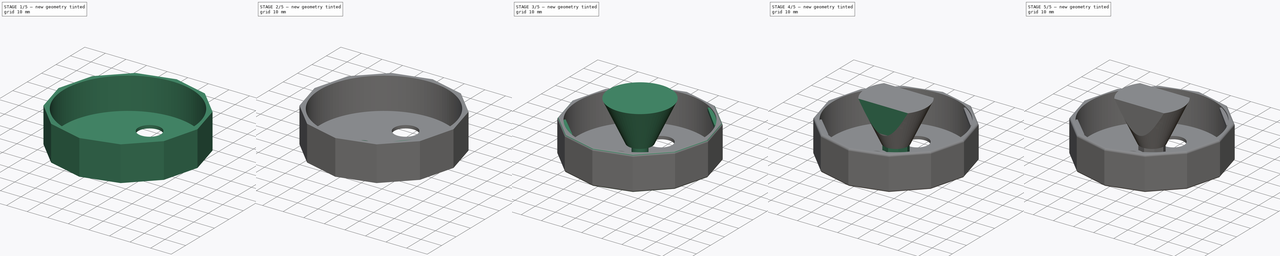
[diagram: build sequence overview — one tinted view per stage of 5, left to right]
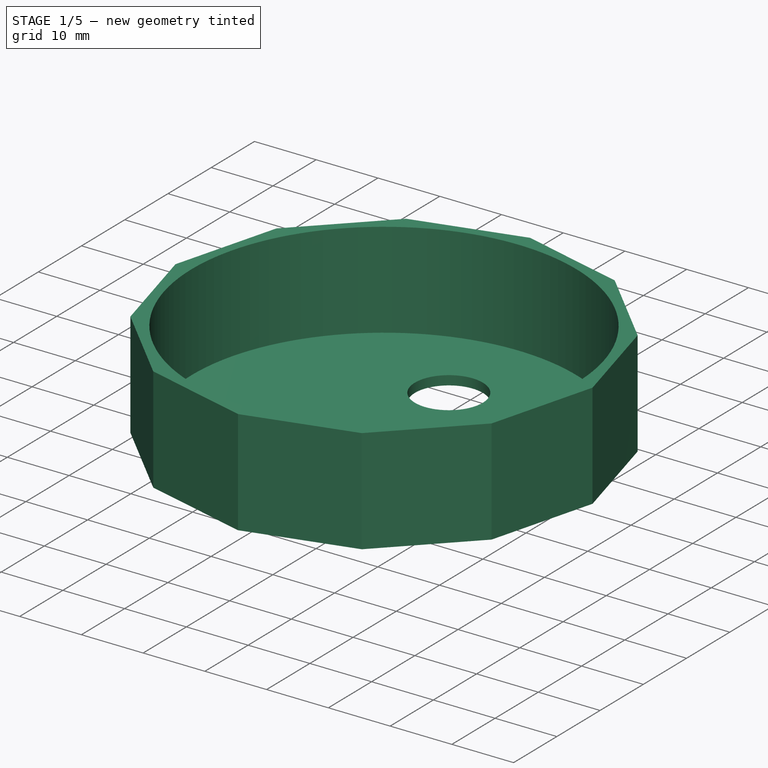
[diagram: stage 1 of 5 — iso view after this stage's code; geometry added in this stage tinted green]
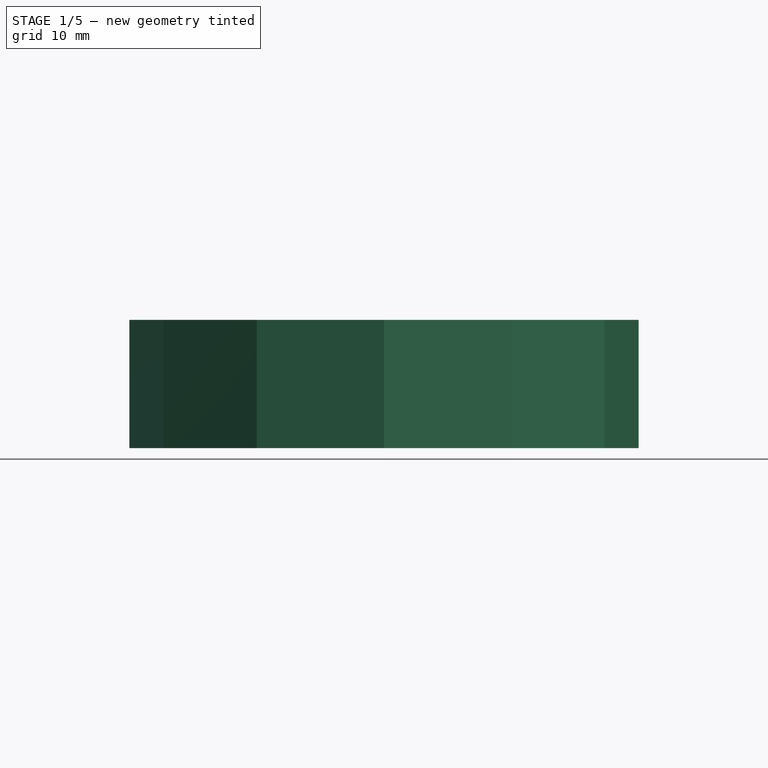
[diagram: stage 1 of 5 — front view after this stage's code; geometry added in this stage tinted green]
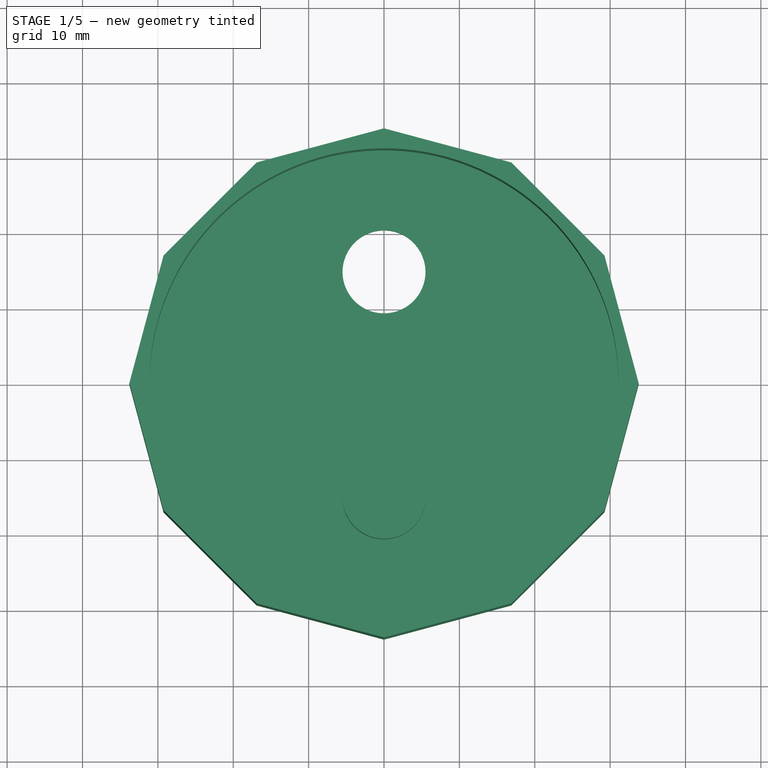
[diagram: stage 1 of 5 — top view after this stage's code; geometry added in this stage tinted green]
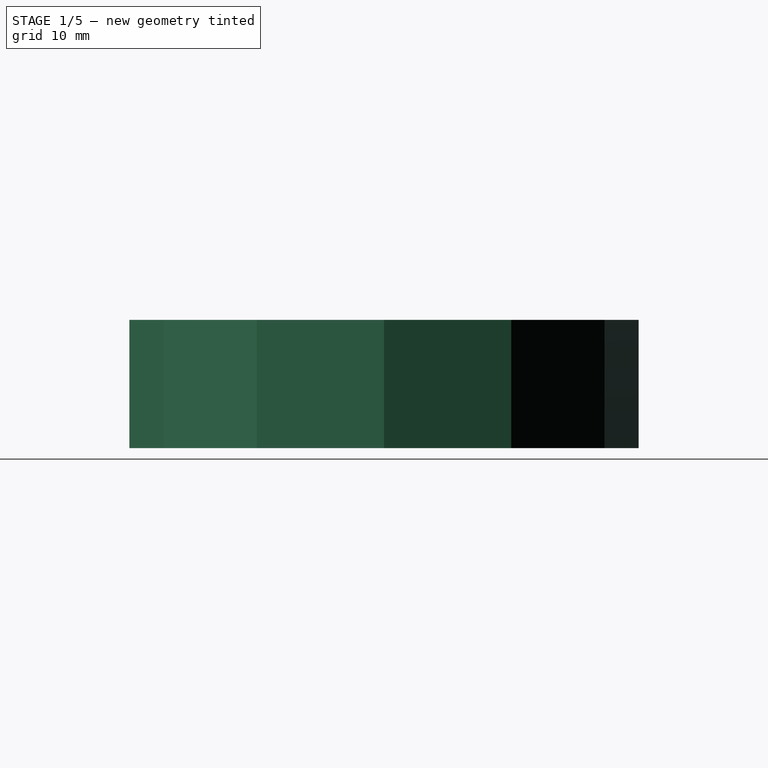
[diagram: stage 1 of 5 — right view after this stage's code; geometry added in this stage tinted green]
FCSTD DOCUMENT  (FreeCAD 2023.131R26244 +5365 (Git))
Label: Mason Jar Culture Lid - Flanged
License: All rights reserved
LicenseURL: http://en.wikipedia.org/wiki/All_rights_reserved
objects: Sketcher::SketchObject×15, PartDesign::Pad×7, PartDesign::Pocket×5, PartDesign::Chamfer×3, PartDesign::Body×3, Spreadsheet::Sheet×2, PartDesign::AdditiveHelix×2, PartDesign::Hole×1, PartDesign::PolarPattern×1, PartDesign::Fillet×1
note: 93 computed .brp shape members not serialized (recipe doc carries the construction recipe); baked Part::Feature solids carry a one-line shape summary decoded from their .brp

FEATURE [Spreadsheet::Sheet] Spreadsheet  label="Parameters"
  PythonMode = false
  ShowCells = 0
  TreeRank = 1
  cells = A2=Ring Inner Diameter; B2(Ring_Inner_Diameter)=62.25; C2=Should be large enough to fit over the threads on the glass jar.; A3=Ring Min Thickness; B3(Ring_Min_Thickness)=1.5; C3=The thickness of the thinnest part of the ring.; A4=Ring Side Height; B4(Ring_Side_Height)=15.5; C4=How much material will screw onto the jar.; A5=Ring Top Height; B5(Ring_Top_Height)=1.5; C5=How thick the lid is on top of the jar.; A7=Flange Height; B7(Flange_Height)=1.8; C7=The height of the threads from the inner survace of the lid.; I7=1.3; A8=Flange Depth; B8(Flange_Depth)=1.6; C8=How tall the flanges are; I8=1.3; A9=Flange Length; B9(Flange_Length)=16; C9=The linear length of each flange.; I9=8; A10=Flange Count; B10(Flange_Count)=4; C10=The number of flanges to create; A11=Flange Angle; B11(Flange_Angle)=2; B13=Diameter; C13=Offset; A14=Injection Port Hole Diameter; B14(Injection_Port_Diameter)=11; C14(Injection_Port_Offset)=15; A15=Luer Bulkhead Diameter; B15(Luer_Port_Diameter)=8; C15(Luer_Port_Offset)=15; A17=Bulkhead Geometry; A18=Shaft Length; B18(luer_bulkhead_length)=8.51; A20=Luer Lock Geometry; A21=Center Post Outer Diameter; B21(luer_post_outer_diameter)=3.976; A22=Center Post Inner Diameter; B22(luer_post_inner_diameter)=2.95; A23=Center Post Height; B23(luer_post_height)=6.75; A24=Recess Well Diameter; B24(luer_recess_diameter)=7.9; A25=Recess Well Wall Thickness; B25(luer_recess_thickness)=1.25; A26=Recess Well Height; B26(luer_recess_height)=7.4; A27=Thread Angle; B27(luer_thread_angle)=25; A28=Thread Height; B28(luer_thread_height)=1; A29=Thread Depth; B29(luer_thread_depth)=0.45; A30=Thread Pitch; B30(luer_thread_pitch)=2.5
FEATURE [Sketcher::SketchObject] Sketch
  ArcFitTolerance = 1e-06
  AttachmentSupport = -> [XY_Plane]
  ExternalBSplineMaxDegree = 5
  ExternalBSplineTolerance = 0.0001
  FullyConstrained = false
  InternalTolerance = 1e-06
  InvalidShape = false
  MakeInternals = false
  MapMode = 5
  Support = -> [XY_Plane]
  TreeRank = 14
  ValidateShape = true
  expr: Constraints[35] = <<Parameters>>.Ring_Inner_Diameter + <<Parameters>>.Ring_Min_Thickness * 2
  sketch-geometry (14):
    g0: LineSegment StartX=-29.2508 StartY=16.8879 StartZ=0 EndX=-33.7759 EndY=0 EndZ=0
    g1: LineSegment StartX=-33.7759 StartY=0 StartZ=0 EndX=-29.2508 EndY=-16.8879 EndZ=0
    g2: LineSegment StartX=-29.2508 StartY=-16.8879 StartZ=0 EndX=-16.8879 EndY=-29.2508 EndZ=0
    g3: LineSegment StartX=-16.8879 StartY=-29.2508 StartZ=0 EndX=7.1e-15 EndY=-33.7759 EndZ=0
    g4: LineSegment StartX=5.9e-15 StartY=-33.7759 StartZ=0 EndX=16.8879 EndY=-29.2508 EndZ=0
    g5: LineSegment StartX=16.8879 StartY=-29.2508 StartZ=0 EndX=29.2508 EndY=-16.8879 EndZ=0
    g6: LineSegment StartX=29.2508 StartY=-16.8879 StartZ=0 EndX=33.7759 EndY=3.6e-15 EndZ=0
    g7: LineSegment StartX=33.7759 StartY=3e-15 StartZ=0 EndX=29.2508 EndY=16.8879 EndZ=0
    g8: LineSegment StartX=29.2508 StartY=16.8879 StartZ=0 EndX=16.8879 EndY=29.2508 EndZ=0
    g9: LineSegment StartX=16.8879 StartY=29.2508 StartZ=0 EndX=-3.6e-15 EndY=33.7759 EndZ=0
    g10: LineSegment StartX=-4.1e-15 StartY=33.7759 StartZ=0 EndX=-16.8879 EndY=29.2508 EndZ=0
    g11: LineSegment StartX=-16.8879 StartY=29.2508 StartZ=0 EndX=-29.2508 EndY=16.8879 EndZ=0
    g12: Circle [constr] CenterX=0 CenterY=0 CenterZ=0 NormalX=0 NormalY=0 NormalZ=1 AngleXU=0 Radius=33.7759
    g13: Circle [constr] CenterX=0 CenterY=0 CenterZ=0 NormalX=0 NormalY=0 NormalZ=1 AngleXU=0 Radius=32.625
  constraints (28):
    c: Coincident(g0,g1)
    c: Coincident(g1,g2)
    c: Coincident(g2,g3)
    c: Coincident(g3,g4)
    c: Coincident(g4,g5)
    c: Coincident(g5,g6)
    c: Coincident(g6,g7)
    c: Coincident(g7,g8)
    c: Coincident(g8,g9)
    c: Coincident(g9,g10)
    c: Coincident(g10,g11)
    c: Coincident(g11,g0)
    c: Equal(g0, g1-g11) x11
    c: PointOnObject(g0,g12)
    c: PointOnObject(g1,g12)
    c: PointOnObject(g2,g12)
    c: PointOnObject(g3,g12)
    c: PointOnObject(g4,g12)
    c: PointOnObject(g5,g12)
    c: PointOnObject(g6,g12)
    c: PointOnObject(g7,g12)
    c: PointOnObject(g8,g12)
    c: PointOnObject(g9,g12)
    c: PointOnObject(g10,g12)
    c: PointOnObject(g11,g12)
    c: Diameter(g13) = 65.25
    c: Tangent(g13,g9)
    c: PointOnObject(g0,g-1)
FEATURE [PartDesign::Pad] Pad  label="Lid"
  AddSubType = 0
  AlongSketchNormal = false
  AutoTaperInnerAngle = true
  CheckUpToFaceLimits = true
  ClaimChildren = false
  Direction = (0,0,1)
  Fit = 0
  FitJoin = 0
  InnerFit = 0
  InnerFitJoin = 0
  InvalidShape = false
  Length = 17
  Length2 = 100
  Linearize = true
  NewSolid = false
  Profile = -> Sketch
  Suppress = false
  TaperInnerAngle = 0
  TaperInnerAngleRev = 0
  TreeRank = 15
  Type = 0
  ValidateShape = true
  _ProfileBasedVersion = 1
  expr: Length = <<Parameters>>.Ring_Side_Height + <<Parameters>>.Ring_Top_Height
FEATURE [Sketcher::SketchObject] Sketch001  label="Hole"
  ArcFitTolerance = 1e-06
  AttachmentSupport = -> [Pad]
  ExternalBSplineMaxDegree = 5
  ExternalBSplineTolerance = 0.0001
  FullyConstrained = true
  InternalTolerance = 1e-06
  InvalidShape = false
  MakeInternals = false
  MapMode = 5
  Placement = pos=(0,0,17) rot=(0,0,1;0rad)
  Support = -> [Pad]
  TreeRank = 16
  ValidateShape = true
  expr: Constraints[1] = <<Parameters>>.Ring_Inner_Diameter
  sketch-geometry (1):
    g0: Circle CenterX=0 CenterY=0 CenterZ=0 NormalX=0 NormalY=0 NormalZ=1 AngleXU=0 Radius=31.125
  constraints (2):
    c: Coincident(g0,g-1)
    c: Diameter(g0) = 62.25
FEATURE [PartDesign::Hole] Hole  label="Bottle Opening"
  AddSubType = 1
  BaseFeature = -> Pad
  ClaimChildren = false
  CustomThreadClearance = 0
  Depth = 15.5
  DepthType = 0
  Diameter = 62.25
  DrillForDepth = false
  DrillPoint = 0
  DrillPointAngle = 118
  Fit = 0
  FitJoin = 0
  HoleCutCountersinkAngle = 90
  HoleCutCustomValues = false
  HoleCutDepth = 0
  HoleCutDiameter = 6.1
  HoleCutType = 0
  InnerFit = 0
  InnerFitJoin = 0
  InvalidShape = false
  Linearize = true
  ModelThread = false
  NewSolid = false
  Profile = -> Sketch001
  Suppress = false
  Tapered = false
  TaperedAngle = 90
  ThreadClass = 0
  ThreadDepth = 15.5
  ThreadDepthType = 0
  ThreadDirection = 0
  ThreadFit = 0
  ThreadSize = 0
  ThreadType = 0
  Threaded = false
  TreeRank = 17
  UseCustomThreadClearance = false
  ValidateShape = true
  _ProfileBasedVersion = 1
  expr: Depth = <<Parameters>>.Ring_Side_Height
  expr: Diameter = <<Parameters>>.Ring_Inner_Diameter
FEATURE [Spreadsheet::Sheet] Spreadsheet001  label="Bootle Specs"
  PythonMode = false
  ShowCells = 0
  TreeRank = 2
  cells = B2=Inner Ring Diameter; C2=Ring Side Height; D2=Flanges; E2=Flange Height; F2=Flange Depth; G2=Flange Length; H2=Flange Angle; A3=24oz Prego Jar; B3=62.25; C3=10.5; D3=4; E3=1.8; F3=1.6; G3=16; H3=2; A4=Mt. Olive 1 Gallon Jar; B4==99mm; C4==15mm; D4=6
FEATURE [Sketcher::SketchObject] Sketch003
  ArcFitTolerance = 1e-06
  AttachmentSupport = -> [XY_Plane]
  ExternalBSplineMaxDegree = 5
  ExternalBSplineTolerance = 0.0001
  FullyConstrained = true
  InternalTolerance = 1e-06
  InvalidShape = false
  MakeInternals = false
  MapMode = 5
  Support = -> [XY_Plane]
  TreeRank = 21
  ValidateShape = true
  expr: Constraints[1] = <<Parameters>>.Injection_Port_Diameter
  expr: Constraints[2] = <<Parameters>>.Injection_Port_Offset
  sketch-geometry (1):
    g0: Circle CenterX=0 CenterY=15 CenterZ=0 NormalX=0 NormalY=0 NormalZ=1 AngleXU=0 Radius=5.5
  constraints (3):
    c: PointOnObject(g0,g-2)
    c: Diameter(g0) = 11
    c: DistanceY(g-1,g0) = 15
FEATURE [PartDesign::Pocket] Pocket  label="Injection Port Hole"
  AddSubType = 1
  AutoTaperInnerAngle = true
  BaseFeature = -> Hole
  CheckUpToFaceLimits = true
  ClaimChildren = false
  Fit = 0
  FitJoin = 0
  InnerFit = 0
  InnerFitJoin = 0
  InvalidShape = false
  Length = 100
  Length2 = 100
  Linearize = true
  NewSolid = false
  Profile = -> Sketch003
  Suppress = false
  TaperInnerAngle = 0
  TaperInnerAngleRev = 0
  TreeRank = 22
  Type = 4
  ValidateShape = true
  _ProfileBasedVersion = 1
  _Version = 1
FEATURE [PartDesign::Body] Body001  label="Male Luer Lock"
  AutoGroupSolids = false
  ClaimAllChildren = false
  ExportMode = 0
  Group = -> [Sketch004,Pad002,Sketch005,Pocket001,Sketch006,Pad003,Sketch007,Pocket002,Sketch008,Helix,Sketch009,Helix001,Chamfer]
  InvalidShape = false
  Origin = -> Origin001
  Tip = -> Chamfer
  TreeRank = 33
  ValidateShape = true
  _ExportChildren = -> [Pad002,Pocket001,Pad003,Pocket002,Helix,Helix001,Chamfer]
  _GroupVersion = 1
FEATURE [Sketcher::SketchObject] Sketch010
  ArcFitTolerance = 1e-06
  AttachmentSupport = -> [XY_Plane]
  ExternalBSplineMaxDegree = 5
  ExternalBSplineTolerance = 0.0001
  FullyConstrained = true
  InternalTolerance = 1e-06
  InvalidShape = false
  MakeInternals = false
  MapMode = 5
  Support = -> [XY_Plane]
  TreeRank = 47
  ValidateShape = true
  expr: Constraints[1] = <<Parameters>>.Luer_Port_Offset
  expr: Constraints[2] = <<Parameters>>.Ring_Min_Thickness * 2 + <<Parameters>>.Luer_Port_Diameter
  sketch-geometry (1):
    g0: Circle CenterX=0 CenterY=-15 CenterZ=0 NormalX=0 NormalY=0 NormalZ=1 AngleXU=0 Radius=5.5
  constraints (3):
    c: PointOnObject(g0,g-2)
    c: DistanceY(g0,g-1) = 15
    c: Diameter(g0) = 11
FEATURE [PartDesign::Pad] Pad004
  AddSubType = 0
  AlongSketchNormal = false
  AutoTaperInnerAngle = true
  BaseFeature = -> Pocket
  CheckUpToFaceLimits = true
  ClaimChildren = false
  Direction = (0,0,1)
  Fit = 0
  FitJoin = 0
  InnerFit = 0
  InnerFitJoin = 0
  InvalidShape = false
  Length = 7.01
  Length2 = 100
  Linearize = true
  NewSolid = false
  Profile = -> Sketch010
  Suppress = false
  TaperInnerAngle = 0
  TaperInnerAngleRev = 0
  TreeRank = 48
  Type = 0
  ValidateShape = true
  _ProfileBasedVersion = 1
  expr: Length = <<Parameters>>.luer_bulkhead_length - <<Parameters>>.Ring_Top_Height
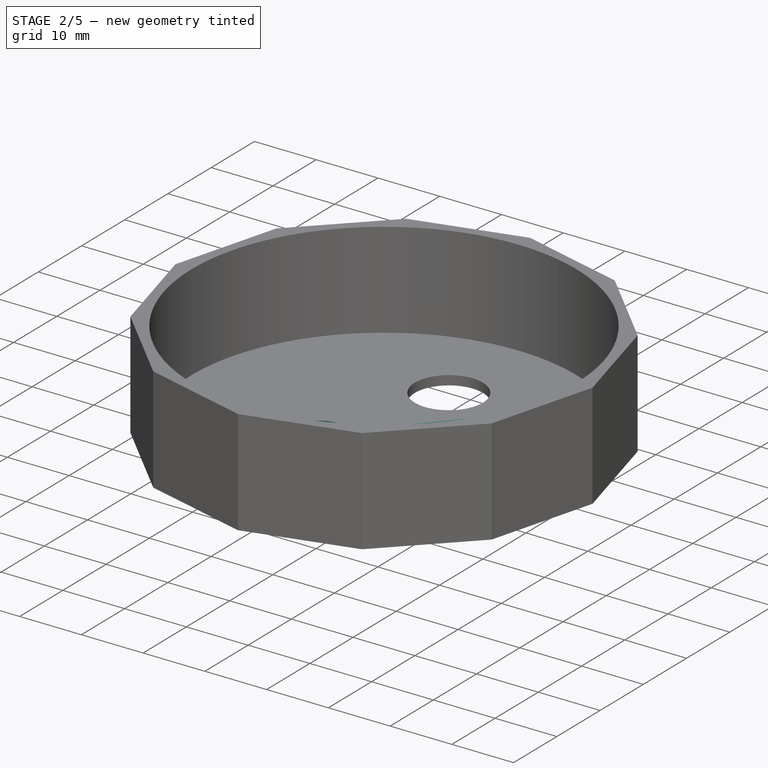
[diagram: stage 2 of 5 — iso view after this stage's code; geometry added in this stage tinted green]
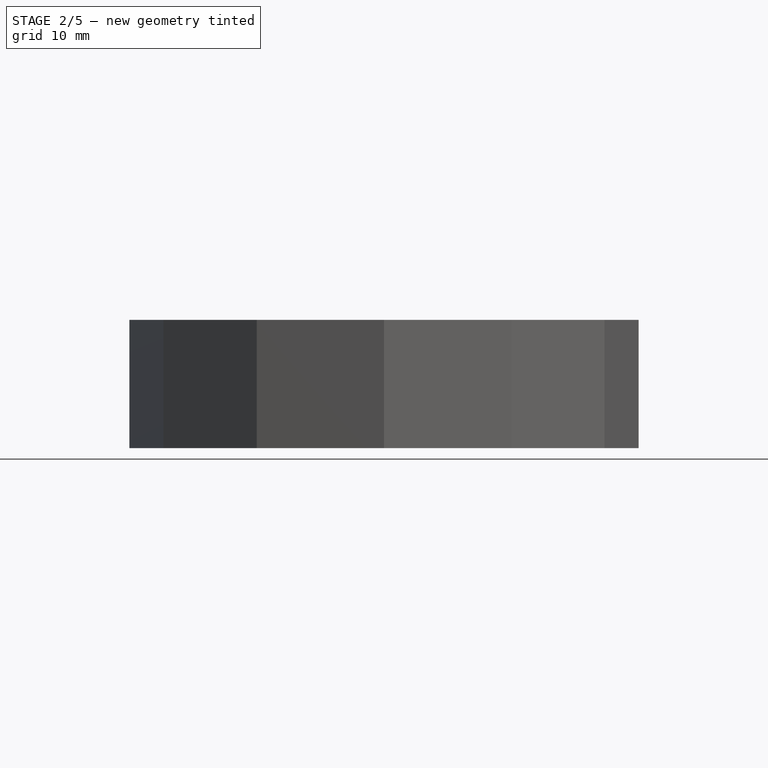
[diagram: stage 2 of 5 — front view after this stage's code; geometry added in this stage tinted green]
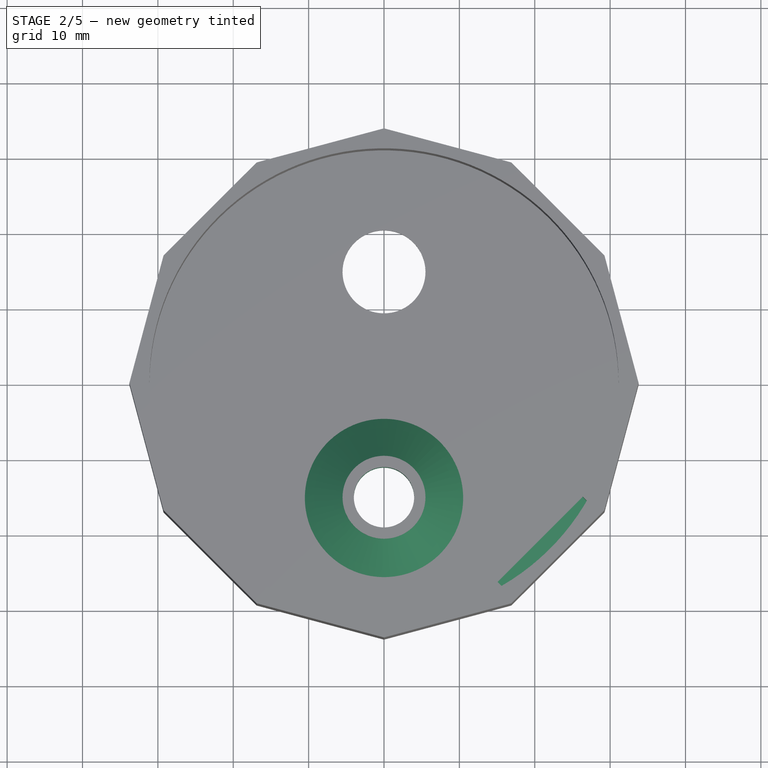
[diagram: stage 2 of 5 — top view after this stage's code; geometry added in this stage tinted green]
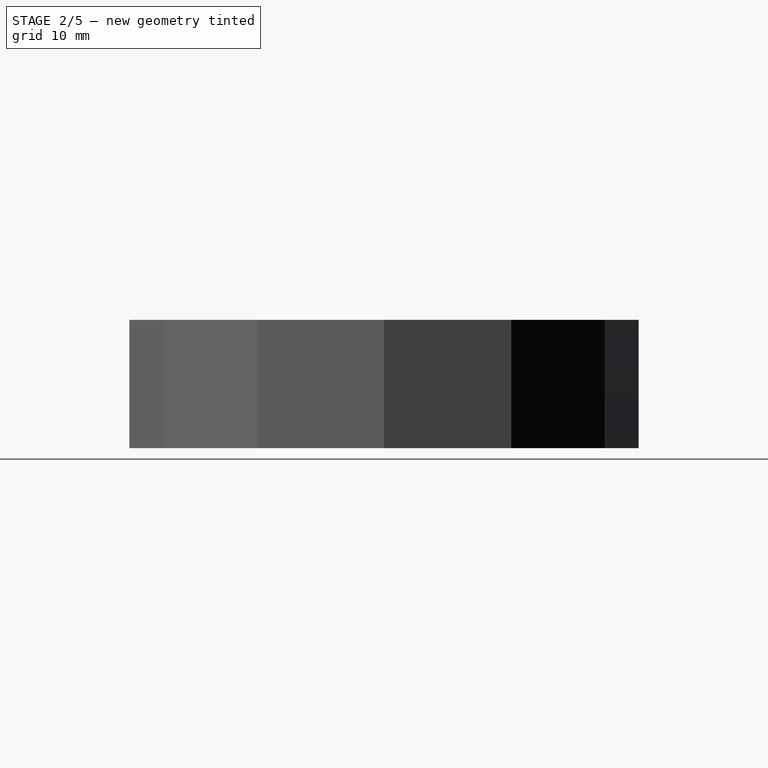
[diagram: stage 2 of 5 — right view after this stage's code; geometry added in this stage tinted green]
FEATURE [Sketcher::SketchObject] Sketch011
  ArcFitTolerance = 1e-06
  AttachmentSupport = -> [XY_Plane]
  ExternalBSplineMaxDegree = 5
  ExternalBSplineTolerance = 0.0001
  FullyConstrained = true
  InternalTolerance = 1e-06
  InvalidShape = false
  MakeInternals = false
  MapMode = 5
  Support = -> [XY_Plane]
  TreeRank = 49
  ValidateShape = true
  expr: Constraints[1] = <<Parameters>>.Luer_Port_Offset
  expr: Constraints[2] = <<Parameters>>.Luer_Port_Diameter
  sketch-geometry (1):
    g0: Circle CenterX=0 CenterY=-15 CenterZ=0 NormalX=0 NormalY=0 NormalZ=1 AngleXU=0 Radius=4
  constraints (3):
    c: PointOnObject(g0,g-2)
    c: DistanceY(g0,g-1) = 15
    c: Diameter(g0) = 8
FEATURE [PartDesign::Pocket] Pocket003
  AddSubType = 1
  AutoTaperInnerAngle = true
  BaseFeature = -> Pad004
  CheckUpToFaceLimits = true
  ClaimChildren = false
  Fit = 0
  FitJoin = 0
  InnerFit = 0
  InnerFitJoin = 0
  InvalidShape = false
  Length = 100
  Length2 = 100
  Linearize = true
  NewSolid = false
  Profile = -> Sketch011
  Suppress = false
  TaperInnerAngle = 0
  TaperInnerAngleRev = 0
  TreeRank = 50
  Type = 4
  ValidateShape = true
  _ProfileBasedVersion = 1
  _Version = 1
FEATURE [PartDesign::Chamfer] Chamfer001
  AddSubType = 0
  Angle = 45
  Base = -> Pocket003 [Edge40]
  BaseFeature = -> Pocket003
  ChamferType = 0
  FlipDirection = false
  InvalidShape = false
  NewSolid = false
  Size = 2
  Size2 = 1
  SupportTransform = false
  Suppress = false
  TreeRank = 51
  ValidateShape = true
FEATURE [PartDesign::Chamfer] Chamfer002
  AddSubType = 0
  Angle = 45
  Base = -> Chamfer001 [Edge47]
  BaseFeature = -> Chamfer001
  ChamferType = 0
  FlipDirection = false
  InvalidShape = false
  NewSolid = false
  Size = 5
  Size2 = 1
  SupportTransform = false
  Suppress = false
  TreeRank = 54
  ValidateShape = true
FEATURE [PartDesign::Body] Body002  label="Luer Press"
  AutoGroupSolids = false
  ClaimAllChildren = false
  ExportMode = 0
  Group = -> [Sketch012,Pad005,Sketch013,Pad006,Sketch014,Pocket004]
  InvalidShape = false
  Origin = -> Origin002
  Tip = -> Pocket004
  TreeRank = 64
  ValidateShape = true
  _ExportChildren = -> [Pad005,Pad006,Pocket004]
  _GroupVersion = 1
FEATURE [Sketcher::SketchObject] Sketch015
  ArcFitTolerance = 1e-06
  AttachmentSupport = -> [Chamfer002]
  ExternalBSplineMaxDegree = 5
  ExternalBSplineTolerance = 0.0001
  FullyConstrained = true
  InternalTolerance = 1e-06
  InvalidShape = false
  MakeInternals = false
  MapMode = 5
  Placement = pos=(23.0694,-23.0694,0) rot=(0.862856,0.357407,0.357407;1.71777rad)
  Support = -> [Chamfer002]
  TreeRank = 71
  ValidateShape = true
  expr: Constraints[10] = <<Parameters>>.Flange_Length / 2
  expr: Constraints[11] = <<Parameters>>.Ring_Side_Height + <<Parameters>>.Ring_Min_Thickness - 0.5
  expr: Constraints[6] = -<<Parameters>>.Flange_Angle
  expr: Constraints[8] = <<Parameters>>.Flange_Depth
  expr: Constraints[9] = <<Parameters>>.Flange_Length
  sketch-geometry (4):
    g0: LineSegment StartX=-8 StartY=15.9432 StartZ=0 EndX=7.94413 EndY=16.5 EndZ=0
    g1: LineSegment StartX=7.94413 StartY=16.5 StartZ=0 EndX=8 EndY=14.9 EndZ=0
    g2: LineSegment StartX=8 StartY=14.9 StartZ=0 EndX=-7.94413 EndY=14.3432 EndZ=0
    g3: LineSegment StartX=-7.94413 StartY=14.3432 StartZ=0 EndX=-8 EndY=15.9432 EndZ=0
  constraints (12):
    c: Coincident(g1,g0)
    c: Coincident(g2,g1)
    c: Coincident(g3,g2)
    c: Coincident(g3,g0)
    c: Parallel(g0,g2)
    c: Parallel(g3,g1)
    c: Angle(g2,g-1) = -0.0349066
    c: Perpendicular(g1,g2)
    c: DistanceY(g1,g0) = 1.6
    c: DistanceX(g0,g1) = 16
    c: DistanceX(g-1,g1) = 8
    c: DistanceY(g-1,g0) = 16.5
FEATURE [PartDesign::Pad] Pad007
  AddSubType = 0
  AlongSketchNormal = false
  AutoTaperInnerAngle = true
  BaseFeature = -> Chamfer002
  CheckUpToFaceLimits = true
  ClaimChildren = false
  Direction = (0.707107,-0.707107,0)
  Fit = 0
  FitJoin = 0
  InnerFit = 0
  InnerFitJoin = 0
  InvalidShape = false
  Length = 3.3
  Length2 = 100
  Linearize = true
  NewSolid = false
  Profile = -> Sketch015
  Reversed = true
  Suppress = false
  TaperInnerAngle = 0
  TaperInnerAngleRev = 0
  TreeRank = 72
  Type = 0
  ValidateShape = true
  _ProfileBasedVersion = 1
  expr: Length = <<Parameters>>.Ring_Min_Thickness + <<Parameters>>.Flange_Height
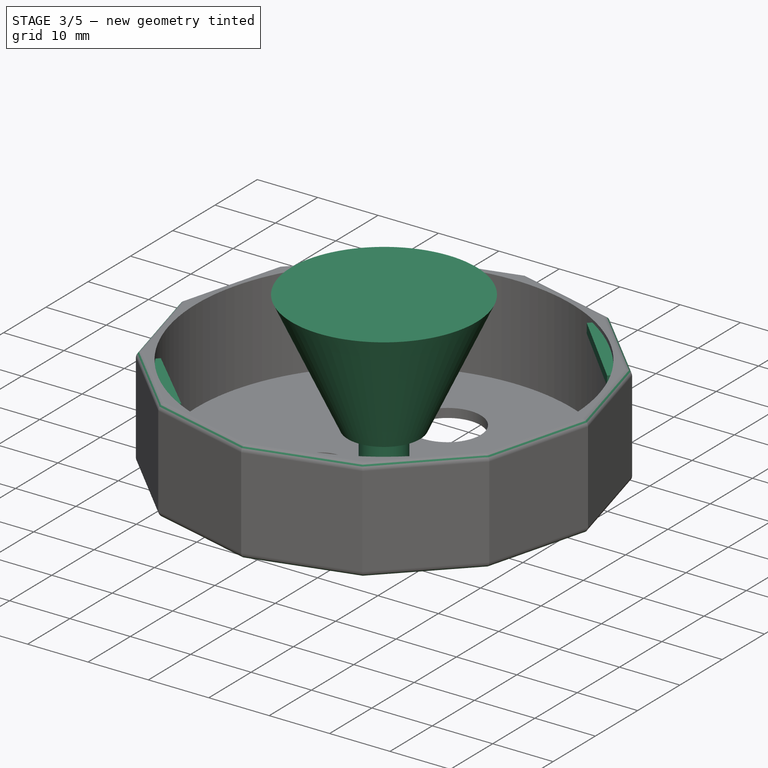
[diagram: stage 3 of 5 — iso view after this stage's code; geometry added in this stage tinted green]
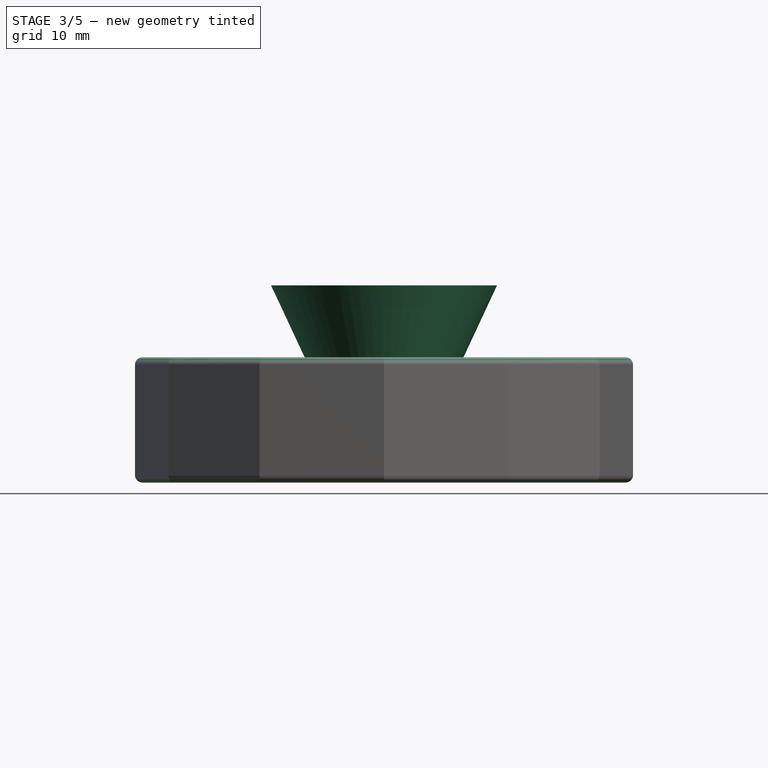
[diagram: stage 3 of 5 — front view after this stage's code; geometry added in this stage tinted green]
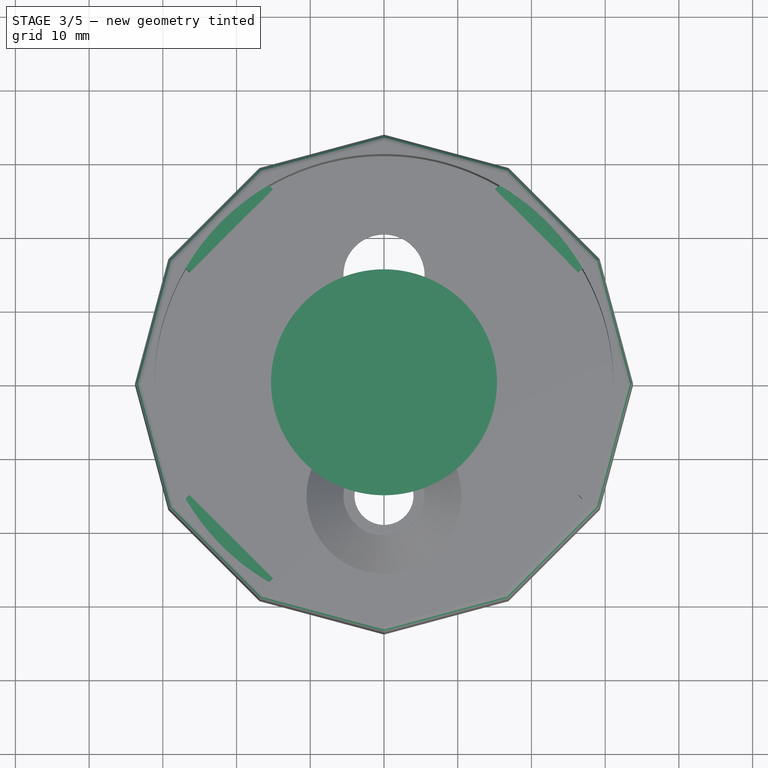
[diagram: stage 3 of 5 — top view after this stage's code; geometry added in this stage tinted green]
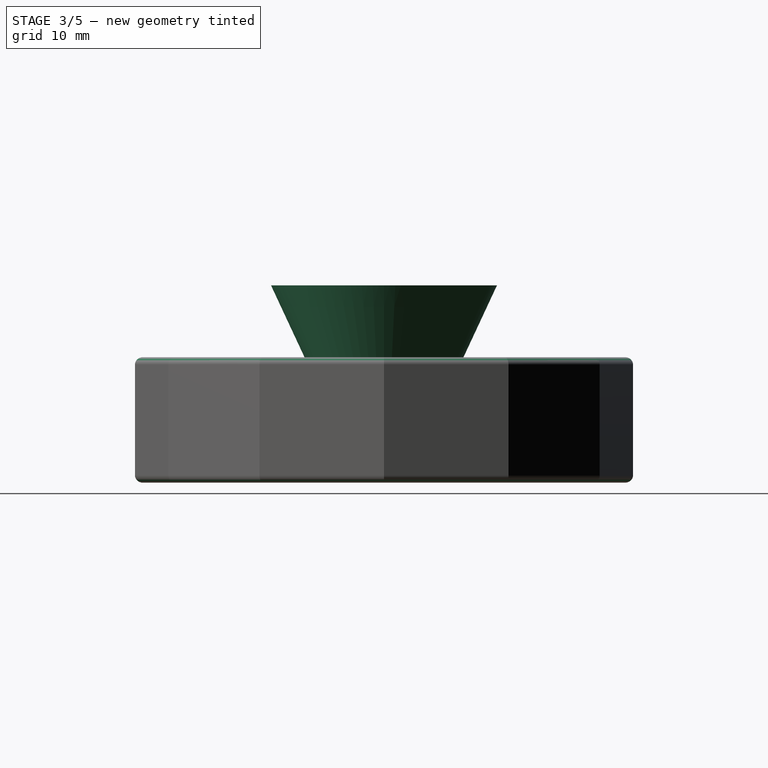
[diagram: stage 3 of 5 — right view after this stage's code; geometry added in this stage tinted green]
FEATURE [Sketcher::SketchObject] Sketch012
  ArcFitTolerance = 1e-06
  AttachmentSupport = -> [XY_Plane002]
  ExternalBSplineMaxDegree = 5
  ExternalBSplineTolerance = 0.0001
  FullyConstrained = true
  InternalTolerance = 1e-06
  InvalidShape = false
  MakeInternals = false
  MapMode = 5
  Support = -> [XY_Plane002]
  TreeRank = 65
  ValidateShape = true
  expr: Constraints[2] = <<Parameters>>.luer_post_outer_diameter + 1
  expr: Constraints[3] = <<Parameters>>.luer_recess_diameter - 1
  sketch-geometry (2):
    g0: Circle CenterX=0 CenterY=0 CenterZ=0 NormalX=0 NormalY=0 NormalZ=1 AngleXU=0 Radius=2.488
    g1: Circle CenterX=0 CenterY=0 CenterZ=0 NormalX=0 NormalY=0 NormalZ=1 AngleXU=0 Radius=3.45
  constraints (4):
    c: Coincident(g0,g-1)
    c: Coincident(g1,g0)
    c: Diameter(g0) = 4.976
    c: Diameter(g1) = 6.9
FEATURE [PartDesign::Pad] Pad005
  AddSubType = 0
  AlongSketchNormal = false
  AutoTaperInnerAngle = true
  CheckUpToFaceLimits = true
  ClaimChildren = false
  Direction = (0,0,1)
  Fit = 0
  FitJoin = 0
  InnerFit = 0
  InnerFitJoin = 0
  InvalidShape = false
  Length = 6.75
  Length2 = 100
  Linearize = true
  NewSolid = false
  Profile = -> Sketch012
  Suppress = false
  TaperInnerAngle = 0
  TaperInnerAngleRev = 0
  TreeRank = 66
  Type = 0
  ValidateShape = true
  _ProfileBasedVersion = 1
  expr: Length = <<Parameters>>.luer_post_height
FEATURE [Sketcher::SketchObject] Sketch013
  ArcFitTolerance = 1e-06
  AttachmentSupport = -> [Pad005]
  ExternalBSplineMaxDegree = 5
  ExternalBSplineTolerance = 0.0001
  FullyConstrained = true
  InternalTolerance = 1e-06
  InvalidShape = false
  MakeInternals = false
  MapMode = 5
  Placement = pos=(0,0,6.75) rot=(0,0,1;0rad)
  Support = -> [Pad005]
  TreeRank = 67
  ValidateShape = true
  sketch-geometry (1):
    g0: Circle CenterX=0 CenterY=0 CenterZ=0 NormalX=0 NormalY=0 NormalZ=1 AngleXU=0 Radius=6
  constraints (2):
    c: Coincident(g0,g-1)
    c: Diameter(g0) = 12
FEATURE [PartDesign::Pad] Pad006
  AddSubType = 0
  AlongSketchNormal = false
  AutoTaperInnerAngle = true
  BaseFeature = -> Pad005
  CheckUpToFaceLimits = true
  ClaimChildren = false
  Direction = (0,0,1)
  Fit = 0
  FitJoin = 0
  InnerFit = 0
  InnerFitJoin = 0
  InvalidShape = false
  Length = 20
  Length2 = 100
  Linearize = true
  NewSolid = false
  Profile = -> Sketch013
  Suppress = false
  TaperAngle = 25
  TaperInnerAngle = -25
  TaperInnerAngleRev = 0
  TreeRank = 68
  Type = 0
  ValidateShape = true
  _ProfileBasedVersion = 1
FEATURE [PartDesign::PolarPattern] PolarPattern
  AddSubType = 0
  Angle = 360
  Axis = -> Z_Axis
  BaseFeature = -> Pad007
  CopyShape = false
  InvalidShape = false
  NewSolid = false
  Occurrences = 4
  OriginalSubs = -> [Pad007]
  Originals = -> [Pad007]
  ParallelTransform = true
  SubTransform = true
  Suppress = false
  TreeRank = 74
  ValidateShape = true
  _Version = 3
  expr: Occurrences = <<Parameters>>.Flange_Count
FEATURE [PartDesign::Fillet] Fillet
  AddSubType = 0
  Base = -> PolarPattern [Edge35,Edge33,Edge31,Edge29,Edge28,Edge30,Edge32,Edge34,Edge36,Edge38,Edge39,Edge37,Edge76,Edge74,Edge73,Edge75,Edge78,Edge80,Edge82,Edge84,Edge83,Edge81,Edge79,Edge77]
  BaseFeature = -> PolarPattern
  InvalidShape = false
  NewSolid = false
  Radius = 1
  SupportTransform = false
  Suppress = false
  TreeRank = 75
  ValidateShape = true
FEATURE [PartDesign::Body] Body  label="Jar Lid"
  AutoGroupSolids = false
  ClaimAllChildren = false
  ExportMode = 0
  Group = -> [Sketch,Pad,Sketch001,Hole,Sketch003,Pocket,Sketch010,Pad004,Sketch011,Pocket003,Chamfer001,Chamfer002,Sketch015,Pad007,PolarPattern,Fillet]
  InvalidShape = false
  Origin = -> Origin
  Tip = -> Fillet
  TreeRank = 13
  ValidateShape = true
  _ExportChildren = -> [Pad,Hole,Pocket,Pad004,Pocket003,Chamfer001,Chamfer002,Pad007,PolarPattern,Fillet]
  _GroupVersion = 1
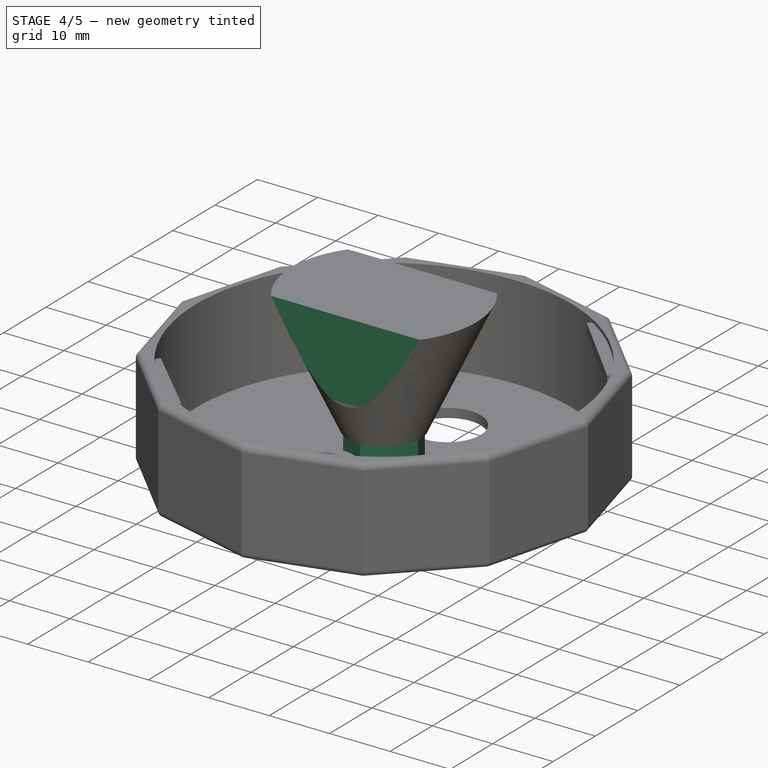
[diagram: stage 4 of 5 — iso view after this stage's code; geometry added in this stage tinted green]
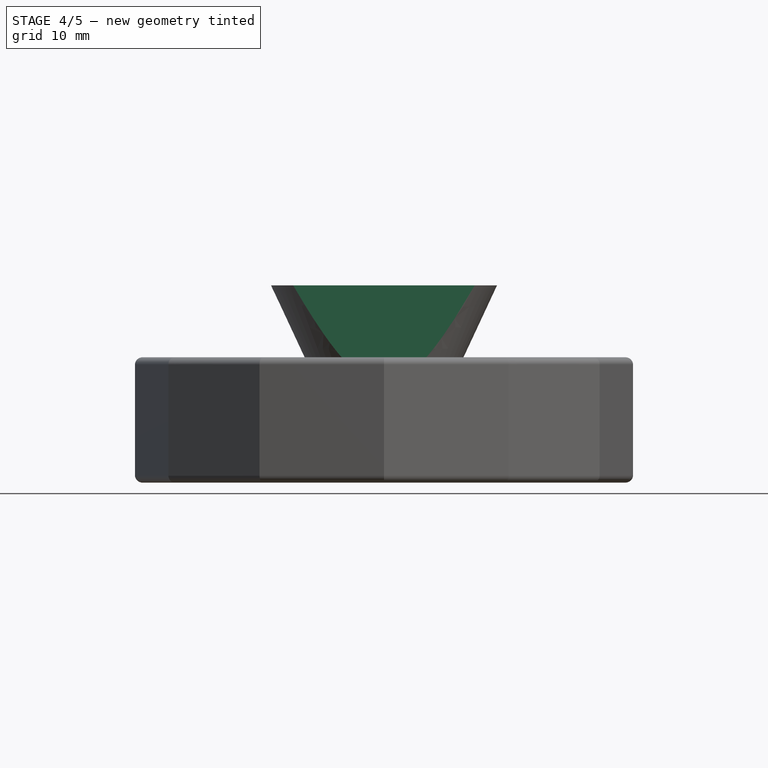
[diagram: stage 4 of 5 — front view after this stage's code; geometry added in this stage tinted green]
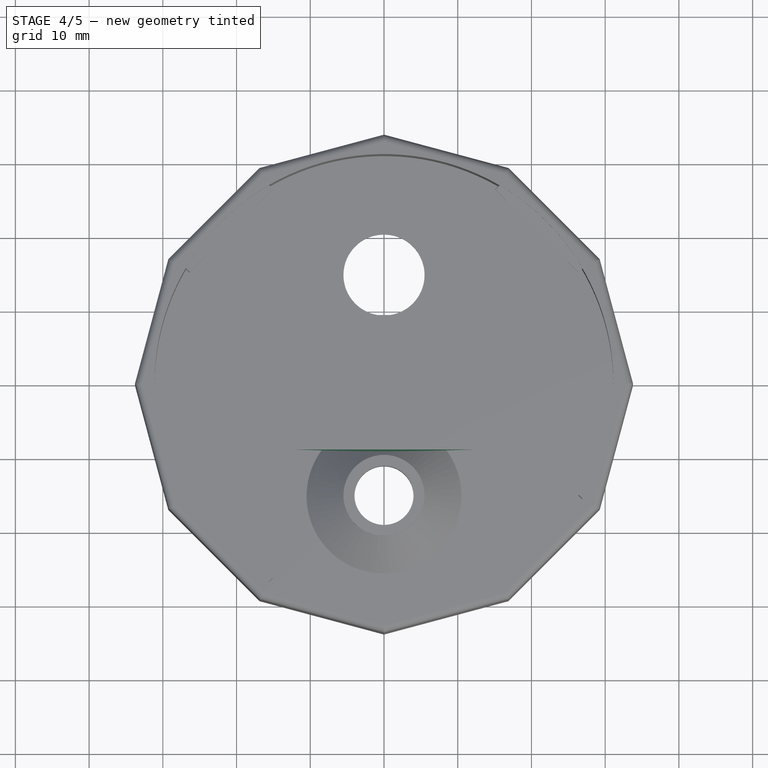
[diagram: stage 4 of 5 — top view after this stage's code; geometry added in this stage tinted green]
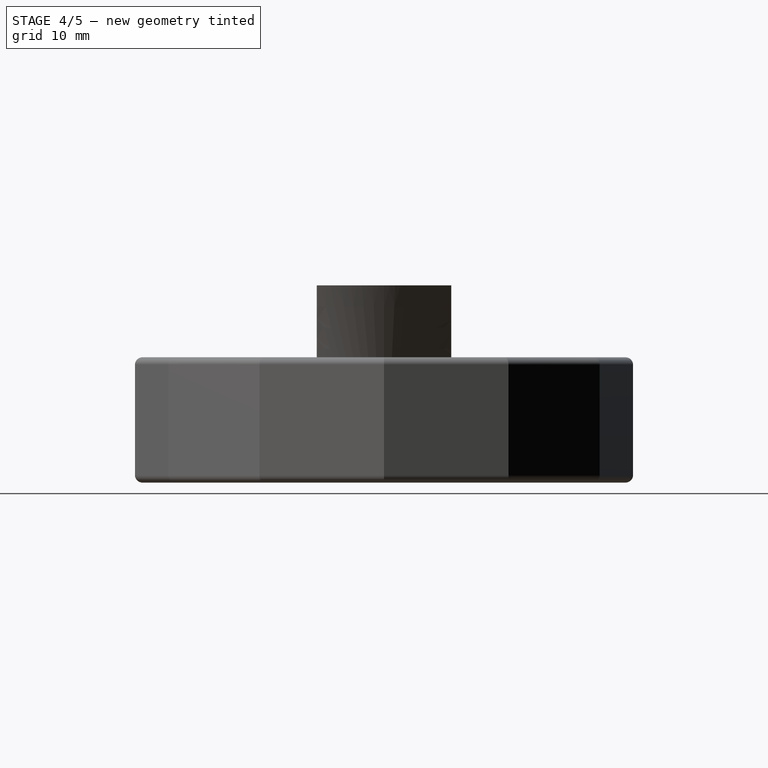
[diagram: stage 4 of 5 — right view after this stage's code; geometry added in this stage tinted green]
FEATURE [Sketcher::SketchObject] Sketch004
  ArcFitTolerance = 1e-06
  AttachmentSupport = -> [XY_Plane001]
  ExternalBSplineMaxDegree = 5
  ExternalBSplineTolerance = 0.0001
  FullyConstrained = true
  InternalTolerance = 1e-06
  InvalidShape = false
  MakeInternals = false
  MapMode = 5
  Support = -> [XY_Plane001]
  TreeRank = 34
  ValidateShape = true
  expr: Constraints[1] = <<Parameters>>.luer_recess_diameter
  expr: Constraints[32] = <<Parameters>>.luer_recess_thickness
  sketch-geometry (13):
    g0: Circle [constr] CenterX=0 CenterY=0 CenterZ=0 NormalX=0 NormalY=0 NormalZ=1 AngleXU=0 Radius=3.95
    g1: LineSegment StartX=-3.97991 StartY=3.97991 StartZ=0 EndX=-5.62844 EndY=1.4033e-12 EndZ=0
    g2: LineSegment StartX=-5.62844 StartY=1.404e-12 StartZ=0 EndX=-3.97991 EndY=-3.97991 EndZ=0
    g3: LineSegment StartX=-3.97991 StartY=-3.97991 StartZ=0 EndX=7.025e-13 EndY=-5.62844 EndZ=0
    g4: LineSegment StartX=7.028e-13 StartY=-5.62844 StartZ=0 EndX=3.97991 EndY=-3.97991 EndZ=0
    g5: LineSegment StartX=3.97991 StartY=-3.97991 StartZ=0 EndX=5.62844 EndY=0 EndZ=0
    g6: LineSegment StartX=5.62844 StartY=0 StartZ=0 EndX=3.97991 EndY=3.97991 EndZ=0
    g7: LineSegment StartX=3.97991 StartY=3.97991 StartZ=0 EndX=7.012e-13 EndY=5.62844 EndZ=0
    g8: LineSegment StartX=7.011e-13 StartY=5.62844 StartZ=0 EndX=-3.97991 EndY=3.97991 EndZ=0
    g9: Circle [constr] CenterX=0 CenterY=0 CenterZ=0 NormalX=0 NormalY=0 NormalZ=1 AngleXU=0 Radius=5.62844
    g10: GeomPoint [constr] X=4.80417 Y=-1.98995 Z=0
    g11: LineSegment [constr] StartX=0 StartY=0 StartZ=0 EndX=4.80417 EndY=-1.98995 EndZ=0
    g12: GeomPoint [constr] X=3.64932 Y=-1.5116 Z=0
  constraints (27):
    c: Coincident(g0,g-1)
    c: Diameter(g0) = 7.9
    c: Coincident(g1,g2)
    c: Coincident(g2,g3)
    c: Coincident(g3,g4)
    c: Coincident(g4,g5)
    c: Coincident(g5,g6)
    c: Coincident(g6,g7)
    c: Coincident(g7,g8)
    c: Coincident(g8,g1)
    c: Equal(g1, g2-g8) x7
    c: PointOnObject(g1,g9)
    c: PointOnObject(g2,g9)
    c: PointOnObject(g3,g9)
    c: PointOnObject(g4,g9)
    c: PointOnObject(g5,g9)
    c: PointOnObject(g6,g9)
    c: PointOnObject(g7,g9)
    c: PointOnObject(g8,g9)
    c: Coincident(g9,g0)
    c: PointOnObject(g5,g-1)
    c: Symmetric(g4,g5,g10)
    c: Coincident(g11,g0)
    c: Coincident(g11,g10)
    c: PointOnObject(g12,g11)
    c: PointOnObject(g12,g0)
    c: Distance(g12,g10) = 1.25
FEATURE [PartDesign::Pad] Pad002
  AddSubType = 0
  AlongSketchNormal = false
  AutoTaperInnerAngle = true
  CheckUpToFaceLimits = true
  ClaimChildren = false
  Direction = (0,0,1)
  Fit = 0
  FitJoin = 0
  InnerFit = 0
  InnerFitJoin = 0
  InvalidShape = false
  Length = 7.4
  Length2 = 100
  Linearize = true
  NewSolid = false
  Profile = -> Sketch004
  Suppress = false
  TaperInnerAngle = 0
  TaperInnerAngleRev = 0
  TreeRank = 35
  Type = 0
  ValidateShape = true
  _ProfileBasedVersion = 1
  expr: Length = <<Parameters>>.luer_recess_height
FEATURE [Sketcher::SketchObject] Sketch005
  ArcFitTolerance = 1e-06
  AttachmentSupport = -> [Pad002]
  ExternalBSplineMaxDegree = 5
  ExternalBSplineTolerance = 0.0001
  FullyConstrained = true
  InternalTolerance = 1e-06
  InvalidShape = false
  MakeInternals = false
  MapMode = 5
  Placement = pos=(0,0,7.4) rot=(0,0,1;0rad)
  Support = -> [Pad002]
  TreeRank = 36
  ValidateShape = true
  expr: Constraints[1] = <<Parameters>>.luer_recess_diameter
  sketch-geometry (1):
    g0: Circle CenterX=0 CenterY=0 CenterZ=0 NormalX=0 NormalY=0 NormalZ=1 AngleXU=0 Radius=3.95
  constraints (2):
    c: Coincident(g0,g-1)
    c: Diameter(g0) = 7.9
FEATURE [PartDesign::Pocket] Pocket001
  AddSubType = 1
  AutoTaperInnerAngle = true
  BaseFeature = -> Pad002
  CheckUpToFaceLimits = true
  ClaimChildren = false
  Fit = 0
  FitJoin = 0
  InnerFit = 0
  InnerFitJoin = 0
  InvalidShape = false
  Length = 6.15
  Length2 = 100
  Linearize = true
  NewSolid = false
  Profile = -> Sketch005
  Suppress = false
  TaperInnerAngle = 0
  TaperInnerAngleRev = 0
  TreeRank = 37
  Type = 0
  ValidateShape = true
  _ProfileBasedVersion = 1
  _Version = 1
  expr: Length = <<Parameters>>.luer_recess_height - <<Parameters>>.luer_recess_thickness
FEATURE [Sketcher::SketchObject] Sketch006
  ArcFitTolerance = 1e-06
  AttachmentSupport = -> [XY_Plane001]
  ExternalBSplineMaxDegree = 5
  ExternalBSplineTolerance = 0.0001
  FullyConstrained = true
  InternalTolerance = 1e-06
  InvalidShape = false
  MakeInternals = false
  MapMode = 5
  Support = -> [XY_Plane001]
  TreeRank = 38
  ValidateShape = true
  expr: Constraints[1] = <<Parameters>>.luer_post_outer_diameter
  sketch-geometry (1):
    g0: Circle CenterX=0 CenterY=0 CenterZ=0 NormalX=0 NormalY=0 NormalZ=1 AngleXU=0 Radius=1.988
  constraints (2):
    c: Coincident(g0,g-1)
    c: Diameter(g0) = 3.976
FEATURE [PartDesign::Pad] Pad003
  AddSubType = 0
  AlongSketchNormal = false
  AutoTaperInnerAngle = true
  BaseFeature = -> Pocket001
  CheckUpToFaceLimits = true
  ClaimChildren = false
  Direction = (0,0,1)
  Fit = 0
  FitJoin = 0
  InnerFit = 0
  InnerFitJoin = 0
  InvalidShape = false
  Length = 6.75
  Length2 = 100
  Linearize = true
  NewSolid = false
  Profile = -> Sketch006
  Suppress = false
  TaperInnerAngle = 0
  TaperInnerAngleRev = 0
  TreeRank = 39
  Type = 0
  ValidateShape = true
  _ProfileBasedVersion = 1
  expr: Length = <<Parameters>>.luer_post_height
FEATURE [Sketcher::SketchObject] Sketch014
  ArcFitTolerance = 1e-06
  AttachmentSupport = -> [Pad006]
  ExternalBSplineMaxDegree = 5
  ExternalBSplineTolerance = 0.0001
  FullyConstrained = false
  InternalTolerance = 1e-06
  InvalidShape = false
  MakeInternals = false
  MapMode = 5
  Placement = pos=(0,0,26.75) rot=(0,0,1;0rad)
  Support = -> [Pad006]
  TreeRank = 69
  ValidateShape = true
  sketch-geometry (10):
    g0: LineSegment StartX=19.2876 StartY=-9.1186 StartZ=0 EndX=19.2876 EndY=9.1186 EndZ=0
    g1: LineSegment StartX=19.2876 StartY=9.1186 StartZ=0 EndX=-19.2876 EndY=9.1186 EndZ=0
    g2: LineSegment StartX=-19.2876 StartY=9.1186 StartZ=0 EndX=-19.2876 EndY=-9.1186 EndZ=0
    g3: LineSegment StartX=-19.2876 StartY=-9.1186 StartZ=0 EndX=19.2876 EndY=-9.1186 EndZ=0
    g4: GeomPoint [constr] X=0 Y=0 Z=0
    g5: LineSegment StartX=24.0596 StartY=-15.3281 StartZ=0 EndX=24.0596 EndY=15.3281 EndZ=0
    g6: LineSegment StartX=24.0596 StartY=15.3281 StartZ=0 EndX=-24.0596 EndY=15.3281 EndZ=0
    g7: LineSegment StartX=-24.0596 StartY=15.3281 StartZ=0 EndX=-24.0596 EndY=-15.3281 EndZ=0
    g8: LineSegment StartX=-24.0596 StartY=-15.3281 StartZ=0 EndX=24.0596 EndY=-15.3281 EndZ=0
    g9: GeomPoint [constr] X=0 Y=0 Z=0
  constraints (20):
    c: Coincident(g0,g1)
    c: Coincident(g1,g2)
    c: Coincident(g2,g3)
    c: Coincident(g3,g0)
    c: Horizontal(g1)
    c: Horizontal(g3)
    c: Vertical(g0)
    c: Vertical(g2)
    c: Symmetric(g1,g0,g4)
    c: Coincident(g4,g-1)
    c: Coincident(g5,g6)
    c: Coincident(g6,g7)
    c: Coincident(g7,g8)
    c: Coincident(g8,g5)
    c: Horizontal(g6)
    c: Horizontal(g8)
    c: Vertical(g5)
    c: Vertical(g7)
    c: Symmetric(g6,g5,g9)
    c: Coincident(g9,g4)
FEATURE [PartDesign::Pocket] Pocket004
  AddSubType = 1
  AutoTaperInnerAngle = true
  BaseFeature = -> Pad006
  CheckUpToFaceLimits = true
  ClaimChildren = false
  Fit = 0
  FitJoin = 0
  InnerFit = 0
  InnerFitJoin = 0
  InvalidShape = false
  Length = 100
  Length2 = 100
  Linearize = true
  NewSolid = false
  Profile = -> Sketch014
  Suppress = false
  TaperInnerAngle = 0
  TaperInnerAngleRev = 0
  TreeRank = 70
  Type = 4
  ValidateShape = true
  _ProfileBasedVersion = 1
  _Version = 1
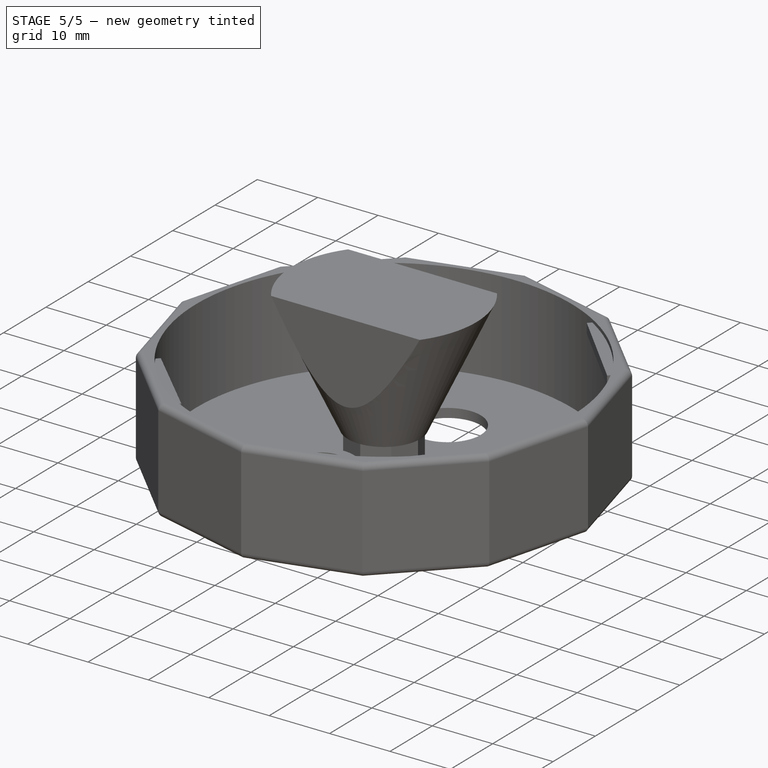
[diagram: stage 5 of 5 — iso view after this stage's code; geometry added in this stage tinted green]
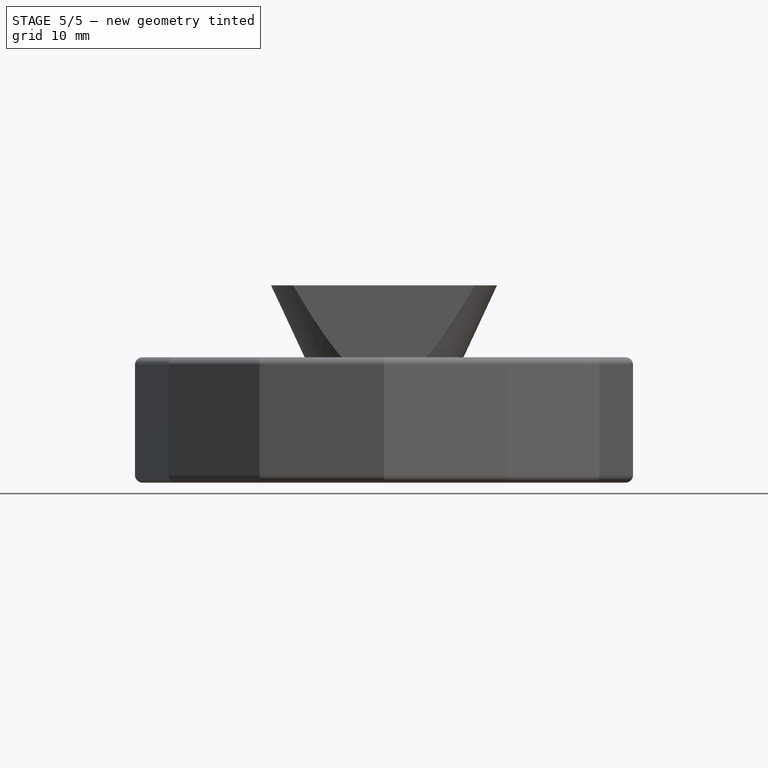
[diagram: stage 5 of 5 — front view after this stage's code; geometry added in this stage tinted green]
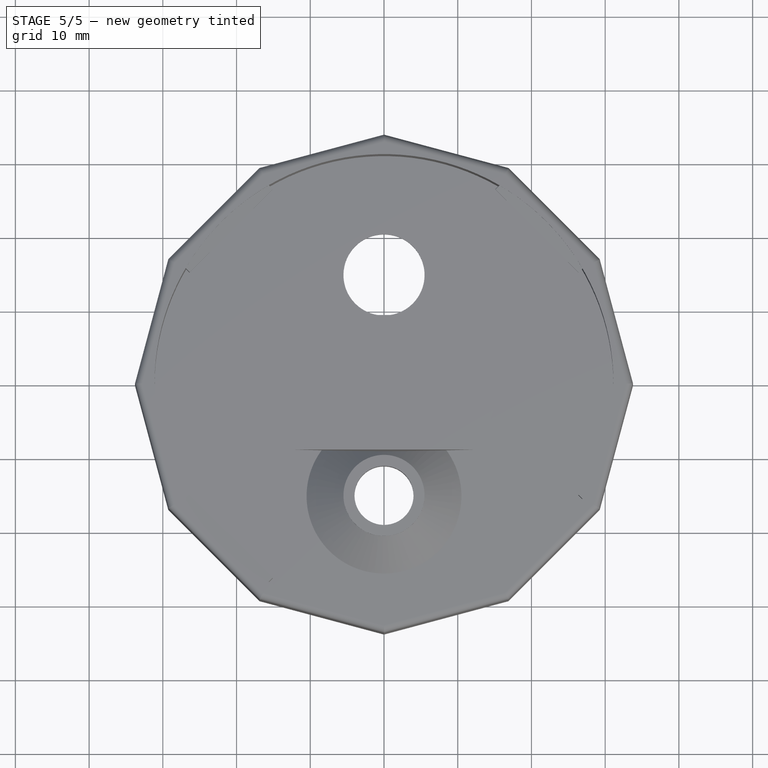
[diagram: stage 5 of 5 — top view after this stage's code; geometry added in this stage tinted green]
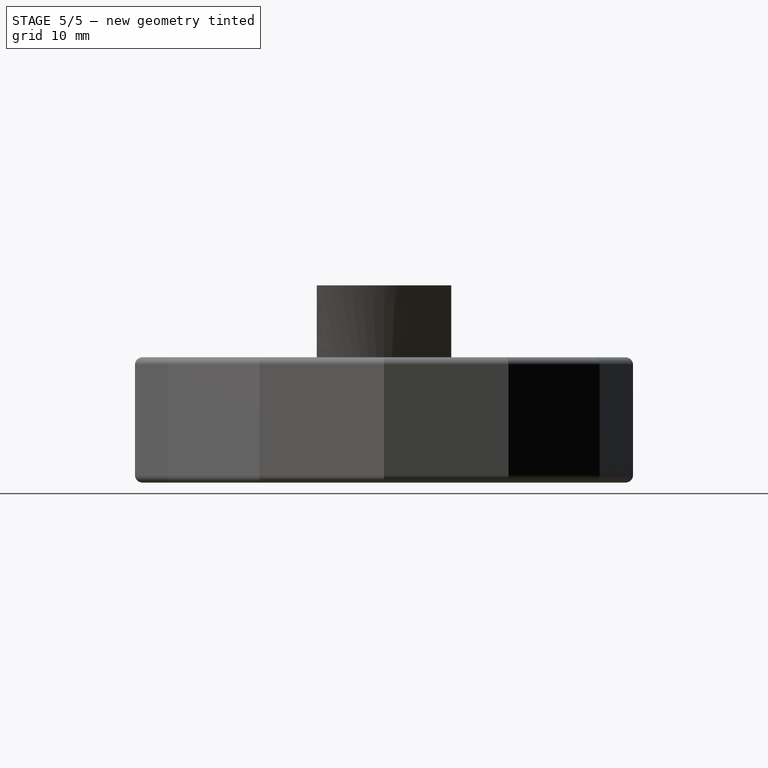
[diagram: stage 5 of 5 — right view after this stage's code; geometry added in this stage tinted green]
FEATURE [Sketcher::SketchObject] Sketch007
  ArcFitTolerance = 1e-06
  AttachmentSupport = -> [XY_Plane001]
  ExternalBSplineMaxDegree = 5
  ExternalBSplineTolerance = 0.0001
  FullyConstrained = true
  InternalTolerance = 1e-06
  InvalidShape = false
  MakeInternals = false
  MapMode = 5
  Support = -> [XY_Plane001]
  TreeRank = 40
  ValidateShape = true
  expr: Constraints[1] = <<Parameters>>.luer_post_inner_diameter
  sketch-geometry (1):
    g0: Circle CenterX=0 CenterY=0 CenterZ=0 NormalX=0 NormalY=0 NormalZ=1 AngleXU=0 Radius=1.475
  constraints (2):
    c: Coincident(g0,g-1)
    c: Diameter(g0) = 2.95
FEATURE [PartDesign::Pocket] Pocket002
  AddSubType = 1
  AutoTaperInnerAngle = true
  BaseFeature = -> Pad003
  CheckUpToFaceLimits = true
  ClaimChildren = false
  Fit = 0
  FitJoin = 0
  InnerFit = 0
  InnerFitJoin = 0
  InvalidShape = false
  Length = 100
  Length2 = 100
  Linearize = true
  NewSolid = false
  Profile = -> Sketch007
  Suppress = false
  TaperInnerAngle = 0
  TaperInnerAngleRev = 0
  TreeRank = 41
  Type = 4
  ValidateShape = true
  _ProfileBasedVersion = 1
  _Version = 1
FEATURE [Sketcher::SketchObject] Sketch008
  ArcFitTolerance = 1e-06
  AttachmentSupport = -> [XZ_Plane001]
  ExternalBSplineMaxDegree = 5
  ExternalBSplineTolerance = 0.0001
  FullyConstrained = false
  InternalTolerance = 1e-06
  InvalidShape = false
  MakeInternals = false
  MapMode = 5
  Placement = pos=(0,0,0) rot=(1,0,0;1.5708rad)
  Support = -> [XZ_Plane001]
  TreeRank = 42
  ValidateShape = true
  expr: Constraints[18] = <<Parameters>>.luer_thread_angle + 90
  expr: Constraints[19] = <<Parameters>>.luer_thread_height
  expr: Constraints[20] = <<Parameters>>.luer_thread_depth
  expr: Constraints[7] = <<Parameters>>.luer_recess_diameter
  expr: Constraints[8] = <<Parameters>>.luer_recess_height
  sketch-geometry (13):
    g0: LineSegment [constr] StartX=-3.95 StartY=0 StartZ=0 EndX=3.95 EndY=0 EndZ=0
    g1: LineSegment [constr] StartX=3.95 StartY=0 StartZ=0 EndX=3.95 EndY=7.4 EndZ=0
    g2: LineSegment [constr] StartX=3.95 StartY=7.4 StartZ=0 EndX=-3.95 EndY=7.4 EndZ=0
    g3: LineSegment [constr] StartX=-3.95 StartY=7.4 StartZ=0 EndX=-3.95 EndY=0 EndZ=0
    g4: LineSegment StartX=-3.95 StartY=6.2 StartZ=0 EndX=-3.95 EndY=7.2 EndZ=0
    g5: LineSegment StartX=-3.95 StartY=7.2 StartZ=0 EndX=-3.5 EndY=6.99016 EndZ=0
    g6: LineSegment StartX=-3.95 StartY=6.2 StartZ=0 EndX=-3.5 EndY=6.40984 EndZ=0
    g7: LineSegment StartX=-3.5 StartY=6.40984 StartZ=0 EndX=-3.5 EndY=6.99016 EndZ=0
    g8: LineSegment [constr] StartX=3.95 StartY=7.2 StartZ=0 EndX=3.95 EndY=6.2 EndZ=0
    g9: LineSegment [constr] StartX=3.95 StartY=6.2 StartZ=0 EndX=3.5 EndY=6.40984 EndZ=0
    g10: LineSegment [constr] StartX=3.95 StartY=7.2 StartZ=0 EndX=3.5 EndY=6.99016 EndZ=0
    g11: LineSegment [constr] StartX=3.5 StartY=6.99016 StartZ=0 EndX=3.5 EndY=6.40984 EndZ=0
    g12: LineSegment [constr] StartX=-3.95 StartY=7.2 StartZ=0 EndX=3.95 EndY=7.2 EndZ=0
  constraints (36):
    c: Coincident(g0,g1)
    c: Coincident(g2,g3)
    c: Coincident(g3,g0)
    c: Horizontal(g0)
    c: Horizontal(g2)
    c: Vertical(g1)
    c: Vertical(g3)
    c: DistanceX(g2,g1) = 7.9
    c: DistanceY(g0,g1) = 7.4
    c: Symmetric(g0,g0,g-1)
    c: PointOnObject(g4,g3)
    c: PointOnObject(g4,g3)
    c: Coincident(g5,g4)
    c: Coincident(g6,g4)
    c: Coincident(g7,g6)
    c: Coincident(g7,g5)
    c: Parallel(g4,g7)
    c: Equal(g6,g5)
    c: Angle(g5,g7) = 2.00713
    c: DistanceY(g4,g4) = 1
    c: DistanceX(g4,g5) = 0.45
    c: PointOnObject(g8,g1)
    c: PointOnObject(g8,g1)
    c: Coincident(g9,g8)
    c: Coincident(g10,g8)
    c: Coincident(g11,g10)
    c: Coincident(g11,g9)
    c: Vertical(g11)
    c: Equal(g4,g8)
    c: Equal(g7,g11)
    c: Equal(g10,g9)
    c: Equal(g10,g5)
    c: Coincident(g12,g4)
    c: Coincident(g12,g8)
    c: Horizontal(g12)
    c: DistanceY(g8,g1) = 0.2
FEATURE [PartDesign::AdditiveHelix] Helix
  AddSubType = 0
  Angle = 0
  Axis = (0,-2e-16,1)
  Base = (0,0,0)
  BaseFeature = -> Pocket002
  ClaimChildren = false
  Fit = 0
  FitJoin = 0
  Growth = 0
  HasBeenEdited = true
  Height = 5
  InnerFit = 0
  InnerFitJoin = 0
  InvalidShape = false
  LeftHanded = false
  Linearize = true
  Mode = 1
  NewSolid = false
  Outside = false
  Pitch = 2.5
  Profile = -> Sketch008
  ReferenceAxis = -> Sketch008 [V_Axis]
  Reversed = true
  Suppress = false
  TreeRank = 43
  Turns = 2
  ValidateShape = true
  _ProfileBasedVersion = 1
  expr: Pitch = <<Parameters>>.luer_thread_pitch
FEATURE [Sketcher::SketchObject] Sketch009
  ArcFitTolerance = 1e-06
  AttachmentSupport = -> [XZ_Plane001]
  ExternalBSplineMaxDegree = 5
  ExternalBSplineTolerance = 0.0001
  FullyConstrained = false
  InternalTolerance = 1e-06
  InvalidShape = false
  MakeInternals = false
  MapMode = 5
  Placement = pos=(0,0,0) rot=(1,0,0;1.5708rad)
  Support = -> [XZ_Plane001]
  TreeRank = 44
  ValidateShape = true
  expr: Constraints[18] = <<Parameters>>.luer_thread_angle + 90
  expr: Constraints[19] = <<Parameters>>.luer_thread_height
  expr: Constraints[20] = <<Parameters>>.luer_thread_depth
  expr: Constraints[7] = <<Parameters>>.luer_recess_diameter
  expr: Constraints[8] = <<Parameters>>.luer_recess_height
  sketch-geometry (13):
    g0: LineSegment [constr] StartX=-3.95 StartY=0 StartZ=0 EndX=3.95 EndY=0 EndZ=0
    g1: LineSegment [constr] StartX=3.95 StartY=0 StartZ=0 EndX=3.95 EndY=7.4 EndZ=0
    g2: LineSegment [constr] StartX=3.95 StartY=7.4 StartZ=0 EndX=-3.95 EndY=7.4 EndZ=0
    g3: LineSegment [constr] StartX=-3.95 StartY=7.4 StartZ=0 EndX=-3.95 EndY=0 EndZ=0
    g4: LineSegment [constr] StartX=-3.95 StartY=6.2 StartZ=0 EndX=-3.95 EndY=7.2 EndZ=0
    g5: LineSegment [constr] StartX=-3.95 StartY=7.2 StartZ=0 EndX=-3.5 EndY=6.99016 EndZ=0
    g6: LineSegment [constr] StartX=-3.95 StartY=6.2 StartZ=0 EndX=-3.5 EndY=6.40984 EndZ=0
    g7: LineSegment [constr] StartX=-3.5 StartY=6.40984 StartZ=0 EndX=-3.5 EndY=6.99016 EndZ=0
    g8: LineSegment StartX=3.95 StartY=7.2 StartZ=0 EndX=3.95 EndY=6.2 EndZ=0
    g9: LineSegment StartX=3.95 StartY=6.2 StartZ=0 EndX=3.5 EndY=6.40984 EndZ=0
    g10: LineSegment StartX=3.95 StartY=7.2 StartZ=0 EndX=3.5 EndY=6.99016 EndZ=0
    g11: LineSegment StartX=3.5 StartY=6.99016 StartZ=0 EndX=3.5 EndY=6.40984 EndZ=0
    g12: LineSegment [constr] StartX=-3.95 StartY=7.2 StartZ=0 EndX=3.95 EndY=7.2 EndZ=0
  constraints (36):
    c: Coincident(g0,g1)
    c: Coincident(g2,g3)
    c: Coincident(g3,g0)
    c: Horizontal(g0)
    c: Horizontal(g2)
    c: Vertical(g1)
    c: Vertical(g3)
    c: DistanceX(g2,g1) = 7.9
    c: DistanceY(g0,g1) = 7.4
    c: Symmetric(g0,g0,g-1)
    c: PointOnObject(g4,g3)
    c: PointOnObject(g4,g3)
    c: Coincident(g5,g4)
    c: Coincident(g6,g4)
    c: Coincident(g7,g6)
    c: Coincident(g7,g5)
    c: Parallel(g4,g7)
    c: Equal(g6,g5)
    c: Angle(g5,g7) = 2.00713
    c: DistanceY(g4,g4) = 1
    c: DistanceX(g4,g5) = 0.45
    c: PointOnObject(g8,g1)
    c: PointOnObject(g8,g1)
    c: Coincident(g9,g8)
    c: Coincident(g10,g8)
    c: Coincident(g11,g10)
    c: Coincident(g11,g9)
    c: Vertical(g11)
    c: Equal(g4,g8)
    c: Equal(g7,g11)
    c: Equal(g10,g9)
    c: Equal(g10,g5)
    c: Coincident(g12,g4)
    c: Coincident(g12,g8)
    c: Horizontal(g12)
    c: DistanceY(g8,g1) = 0.2
FEATURE [PartDesign::AdditiveHelix] Helix001
  AddSubType = 0
  Angle = 0
  Axis = (0,-2e-16,1)
  Base = (0,0,0)
  BaseFeature = -> Helix
  ClaimChildren = false
  Fit = 0
  FitJoin = 0
  Growth = 0
  HasBeenEdited = true
  Height = 5
  InnerFit = 0
  InnerFitJoin = 0
  InvalidShape = false
  LeftHanded = false
  Linearize = true
  Mode = 1
  NewSolid = false
  Outside = false
  Pitch = 2.5
  Profile = -> Sketch009
  ReferenceAxis = -> Sketch009 [V_Axis]
  Reversed = true
  Suppress = false
  TreeRank = 45
  Turns = 2
  ValidateShape = true
  _ProfileBasedVersion = 1
  expr: Pitch = <<Parameters>>.luer_thread_pitch
FEATURE [PartDesign::Chamfer] Chamfer
  AddSubType = 0
  Angle = 45
  Base = -> Helix001 [Edge49,Edge57]
  BaseFeature = -> Helix001
  ChamferType = 0
  FlipDirection = false
  InvalidShape = false
  NewSolid = false
  Size = 0.4
  Size2 = 1
  SupportTransform = false
  Suppress = false
  TreeRank = 46
  ValidateShape = true
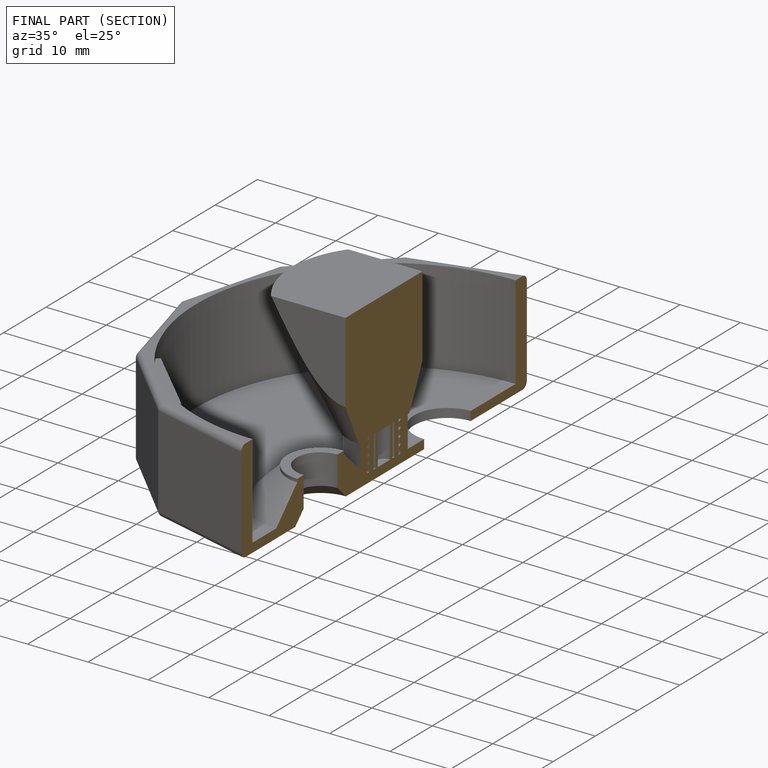
[diagram: finished part — half-section view (interior)]
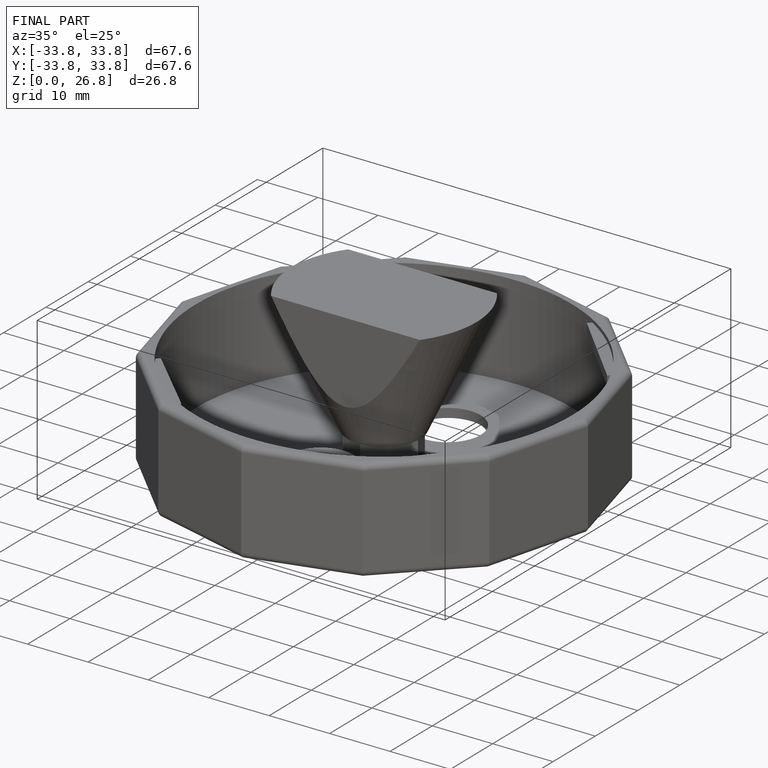
[diagram: finished part — iso view with bounding-box wireframe]
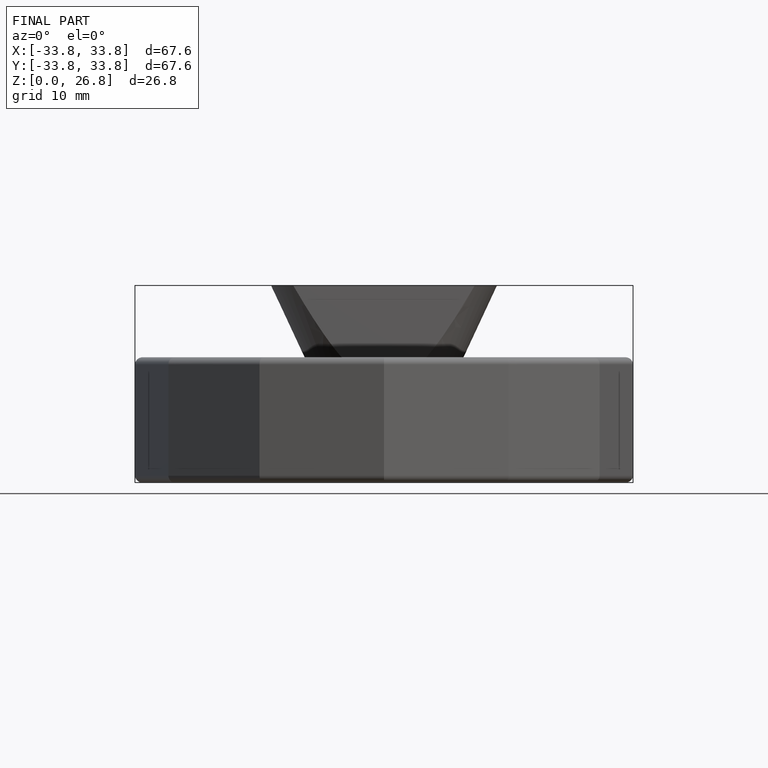
[diagram: finished part — front view with bounding-box wireframe]
